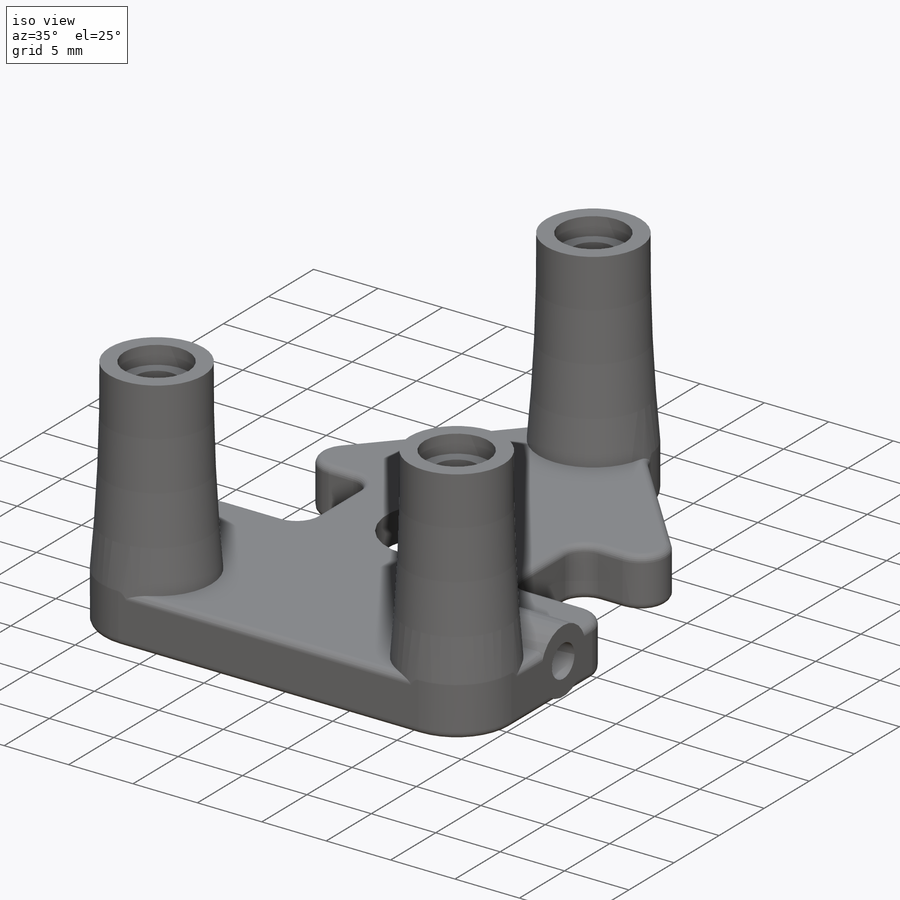
[diagram: iso view]
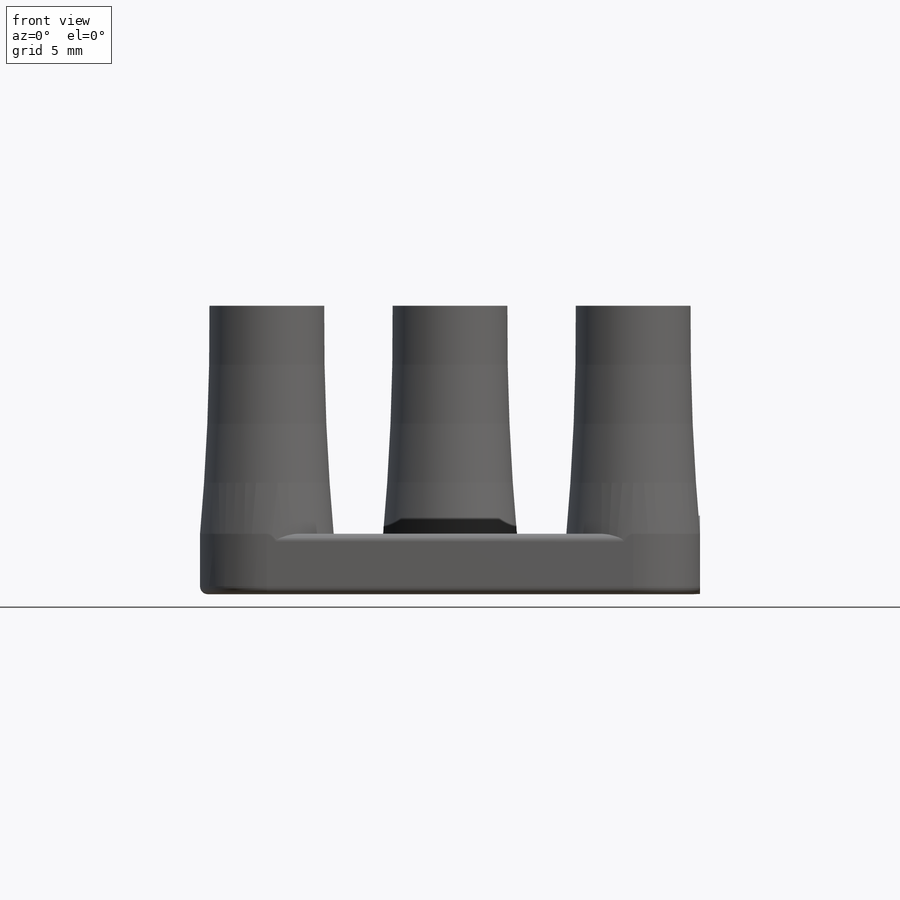
[diagram: front view]
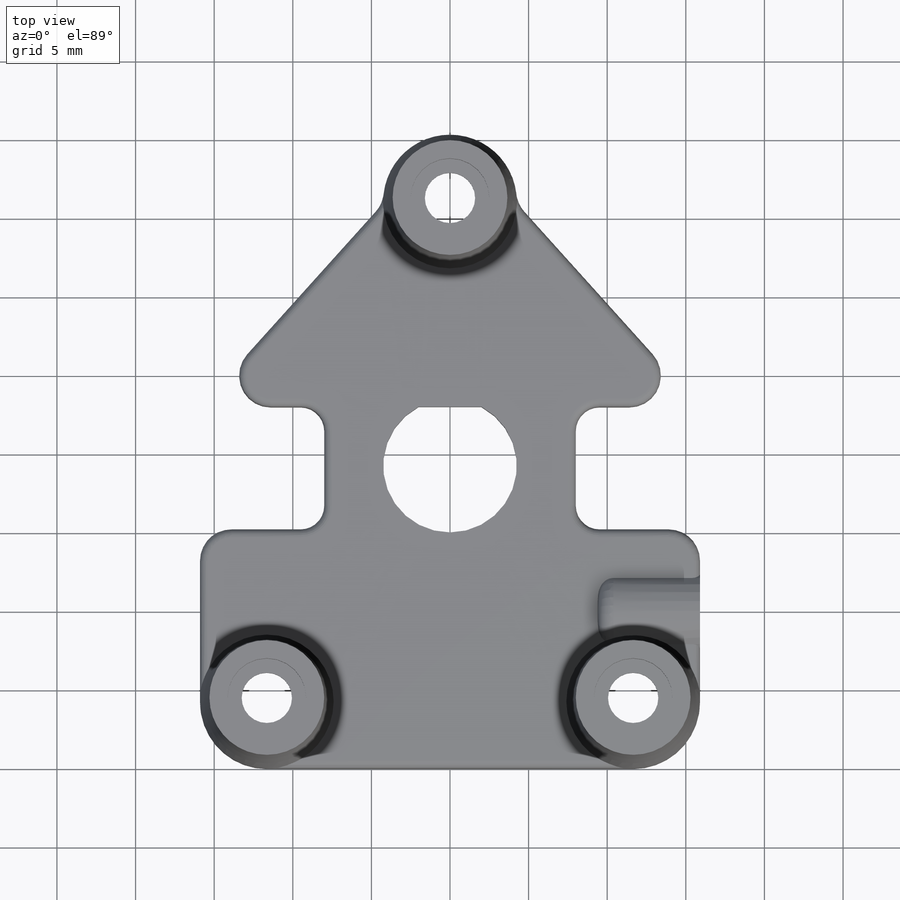
[diagram: top view]
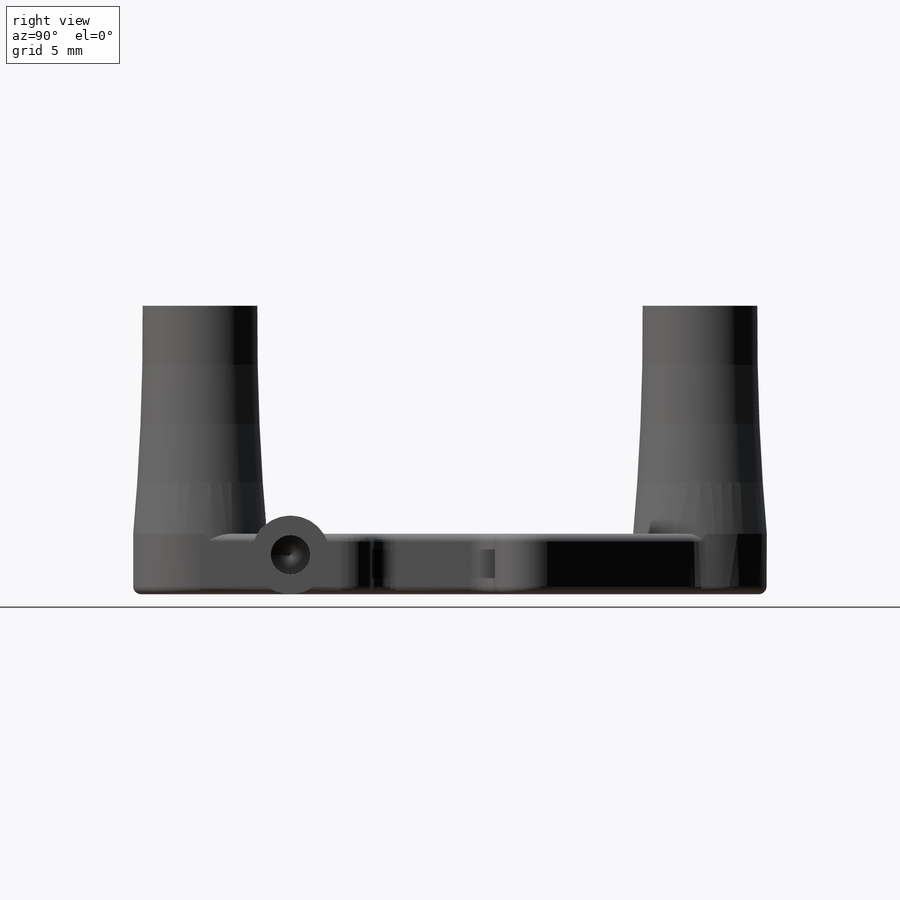
[diagram: right view]
SOLIDWORKS PART (.sldprt)
format: sldprt  version: not decoded by parser v0  size: 827,392 bytes
history: native  units: mm
features: sketch x10, fillet x9, plane x4, extrude x3, revolve x2, hole x2, thread x2, material x1, mirror x1, cut_extrude x1 (+10 scaffold rows collapsed)
feature tree (45):
  scaffold x10  (default folders/planes/origin — collapsed)
  material  "材质 <未指定>"
  plane  "前视基准面"
  plane  "上视基准面"
  plane  "右视基准面"
  sketch  "草图1"  dims[c1.D2=8.5mm c1.D3=8.5mm c1.D9=8.5mm c1.D10=5.6mm c1.D11=5.6mm c1.D12=5.6mm c1.D13=4.25mm c1.D1=40.3mm c2.D2=~17.11709mm c2.D4=16.0mm c2.D5=16.0mm c2.D6=7.8mm c2.D7=8.0mm c2.D8=~11.057437mm c3.D8=48.0deg c3.D5=15.9mm c3.D4=11.75mm c3.D9=23.5mm c3.D10=~6.480741mm c3.D13=3.75mm c3.D14=15.5mm c3.D15=11.75mm c4.D4=15.2mm c4.D14=15.4mm c4.D13=4.0mm c5.D13=90.0deg c6.D13=4.0mm c6.D14=16.8mm]
  extrude  "凸台-拉伸1"  Depth=3.85mm
  fillet  "圆角1"  Radius=2mm
  fillet  "圆角2"  Radius=2mm
  fillet  "圆角3"  Radius=2mm
  sketch  "草图4"  dims[c1.D2=~51.699615mm c1.D5=150.0mm c1.D1=4.25mm c2.D2=1.6mm c2.D3=1.4mm c2.D4=3.65mm c2.D5=2.05mm c3.D2=1.2mm c3.D3=1.6mm c3.D6=1.0mm c3.D7=1.4mm c4.D2=2.5mm c4.D8=14.5mm]
  revolve  "旋转1"  Angle=360deg
  plane  "基准面2"  Offset=4.25mm
  sketch  "草图5"  dims[c1.D2=~98.910631mm c1.D8=150.0mm c1.D1=4.25mm c2.D2=14.5mm c2.D3=1.4mm c2.D4=1.2mm c2.D5=1.0mm c2.D6=1.6mm c2.D7=3.65mm c3.D4=2.5mm]
  revolve  "旋转2"  Angle=360deg
  mirror  "镜向1"
  fillet  "圆角6"  Radius=1.5mm
  sketch  "草图7"  dims[D1=1.5mm D2=1.5mm D3=1.5mm D4=1.5mm]
  cut_extrude  "切除-拉伸1"  Depth=1.5mm
  fillet  "圆角7"  Radius=1mm
  sketch  "草图8"  dims[c1.D1=~2.415677mm c1.D2=5.0mm c2.D1=10.0mm]
  extrude  "凸台-拉伸2"  Depth=6.5mm
  fillet  "圆角8"  Radius=1mm
  hole  "M3 螺纹孔1"  [1 undecoded]
  sketch  "草图10"
  sketch  "草图9"  dims[hole-wizard template sketch: 50 standard entries collapsed; hole parameters above]
  thread  "孔螺蚊线1"  Diameter=4mm  [1 undecoded]
  fillet  "圆角9"  Radius=0.5mm
  fillet  "圆角10"  Radius=0.5mm
  sketch  "草图11"  dims[D1=5.0mm D2=10.0mm]
  extrude  "凸台-拉伸3"  Depth=6.5mm
  hole  "M3 螺纹孔2"  [1 undecoded]
  sketch  "草图13"
  sketch  "草图12"  dims[hole-wizard template sketch: 50 standard entries collapsed; hole parameters above]
  thread  "孔螺蚊线2"  Diameter=4mm  [1 undecoded]
  fillet  "圆角14"  Radius=1mm
decode coverage: 25 of 30 modeling features carry decoded parameters
note: ~ marks probable driven/reference dimensions
note: 4 parameter values undecoded
note: suppression state not decoded; provenance and decode notes live in map.json
